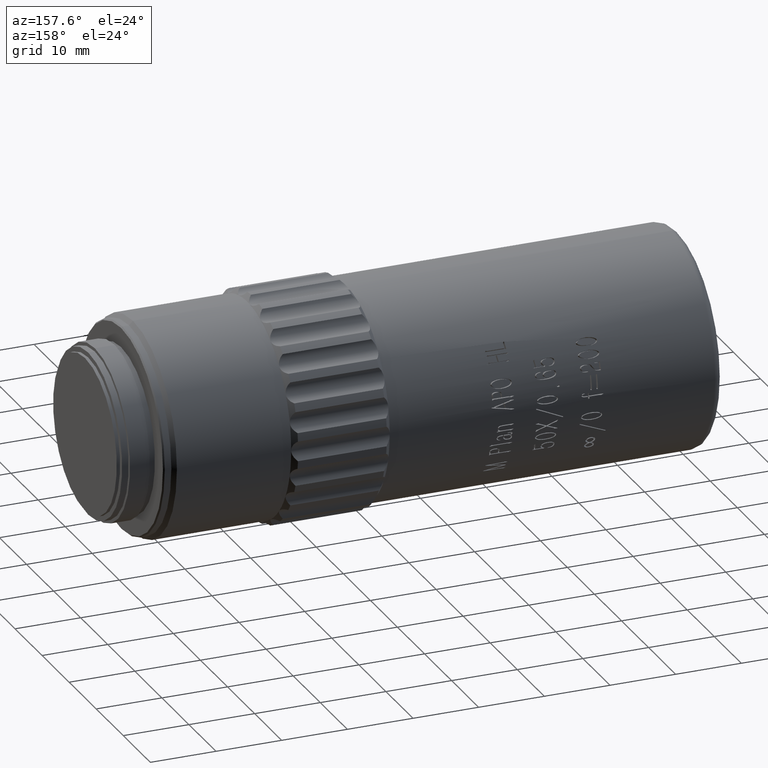
[diagram: clean part render]
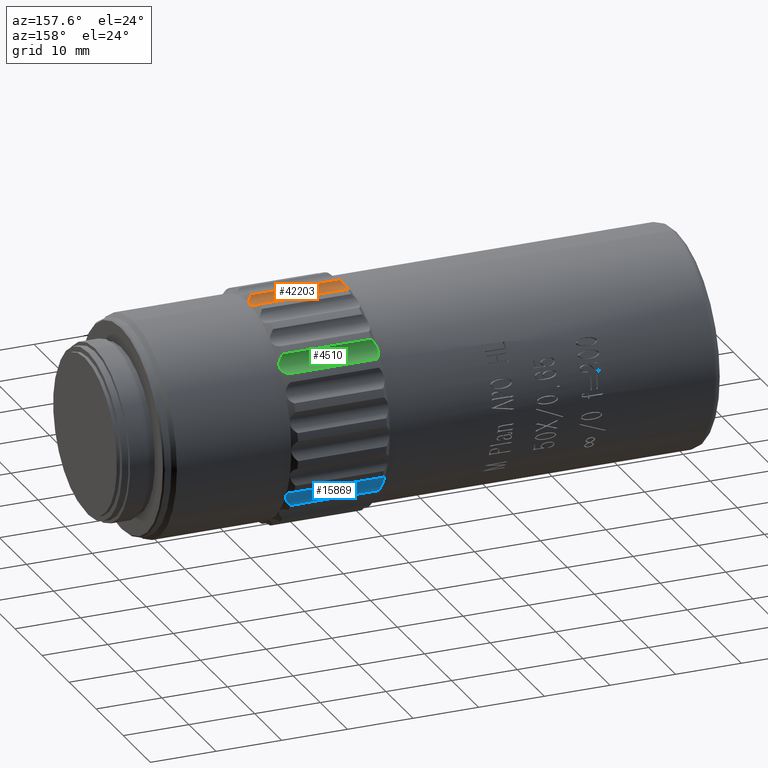
[diagram: same view with three faces highlighted in distinct colors, each labeled with its STEP entity id]
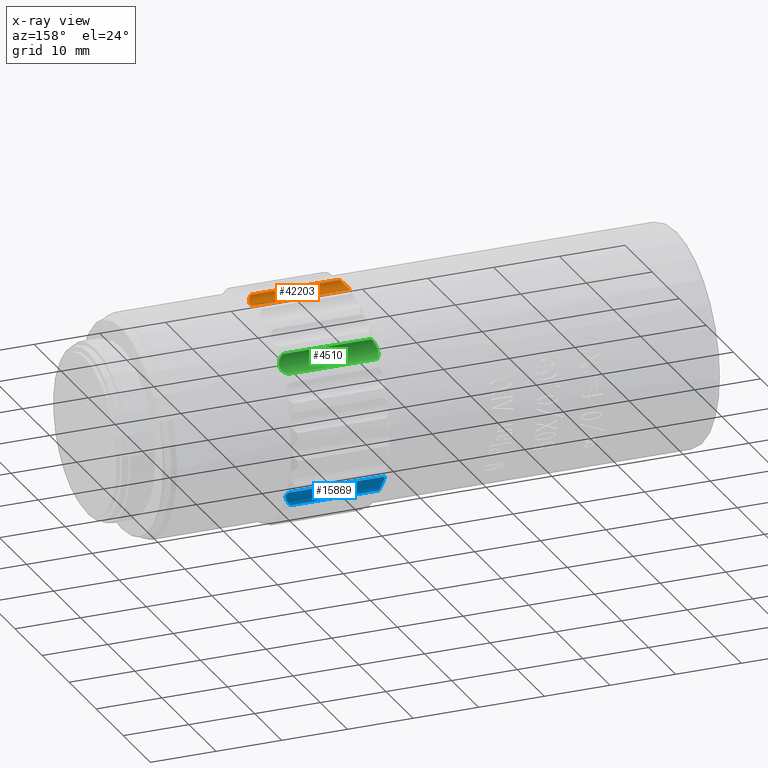
[diagram: x-ray of the same camera — body ghosted, the three highlighted faces saturated]
A machine part, auxiliary view with three faces highlighted in distinct colors.
The next image is the same camera in x-ray (body ghosted, the three faces saturated) — at least one of them is partly hidden behind the body in this view.
Their STEP definitions:

[orange] entity #42203 — the highlighted cylindrical surface (edge-blend (fillet) strip) has radius 2 mm, axis along (-1, -0, -0).
#36 = CARTESIAN_POINT ( 'NONE',  ( 66.36175387757199928, 0.6434555700397179834, 16.27580215441638245 ) ) ;
#61 = ORIENTED_EDGE ( 'NONE', *, *, #34920, .T. ) ;
#622 = EDGE_LOOP ( 'NONE', ( #35382, #61, #4533, #18204, #46809, #15512, #40055 ) ) ;
#1616 = CARTESIAN_POINT ( 'NONE',  ( 52.14999999999998437, 2.565628362228103310, 16.80528342834272948 ) ) ;
#2379 = CARTESIAN_POINT ( 'NONE',  ( 66.39999999999869829, 1.020345942352532287, 16.21793433696066700 ) ) ;
#2443 = CARTESIAN_POINT ( 'NONE',  ( 51.39999999999999147, 1.020345942352447244, 16.21793433695934539 ) ) ;
#3635 = B_SPLINE_CURVE_WITH_KNOTS ( 'NONE', 3,
 ( #31249, #23305, #9456, #40599 ),
 .UNSPECIFIED., .F., .F.,
 ( 4, 4 ),
 ( 0.003034290734495108215, 0.003772584295042918749 ),
 .UNSPECIFIED. ) ;
#3730 = CARTESIAN_POINT ( 'NONE',  ( 66.07517398992278856, -3.686632451628707533E-15, 16.57482601007723844 ) ) ;
#4156 = VERTEX_POINT ( 'NONE', #52501 ) ;
#4533 = ORIENTED_EDGE ( 'NONE', *, *, #34669, .F. ) ;
#4656 = DIRECTION ( 'NONE',  ( -1.000000000000000000, -0.000000000000000000, -0.000000000000000000 ) ) ;
#8544 = CARTESIAN_POINT ( 'NONE',  ( 66.17026312303693203, 0.1360178053035341061, 16.47973687696309142 ) ) ;
#8642 = VERTEX_POINT ( 'NONE', #36420 ) ;
#9009 = CARTESIAN_POINT ( 'NONE',  ( 51.42166185667392853, 0.7055714382331392809, 16.25703325327271287 ) ) ;
#9456 = CARTESIAN_POINT ( 'NONE',  ( 65.80657154407992948, -0.3209692212565879998, 16.84075692340308805 ) ) ;
#10571 = DIRECTION ( 'NONE',  ( -1.000000000000000000, -0.000000000000000000, -0.000000000000000000 ) ) ;
#11216 = CARTESIAN_POINT ( 'NONE',  ( 51.69838355598309931, 2.045280923602134315, 16.42197205866629162 ) ) ;
#12920 = B_SPLINE_CURVE_WITH_KNOTS ( 'NONE', 3,
 ( #47629, #25229, #55553, #36, #47341, #25792, #8544, #3730 ),
 .UNSPECIFIED., .F., .F.,
 ( 4, 2, 2, 4 ),
 ( 0.001887648531581082988, 0.002174309082309589837, 0.002460969633038097119, 0.003034290734495108215 ),
 .UNSPECIFIED. ) ;
#13260 = CARTESIAN_POINT ( 'NONE',  ( 51.69838355598309931, 0.02906558699381834796, 16.54882157568084011 ) ) ;
#13765 = B_SPLINE_CURVE_WITH_KNOTS ( 'NONE', 3,
 ( #49122, #41184, #49955, #27850, #27574, #19656, #27026, #35827, #19096, #2379 ),
 .UNSPECIFIED., .F., .F.,
 ( 4, 2, 2, 2, 4 ),
 ( 3.147481219699041249E-07, 0.0004721481939867481939, 0.0009439816398515264587, 0.001415815085716304669, 0.001887648531581082988 ),
 .UNSPECIFIED. ) ;
#13809 = CARTESIAN_POINT ( 'NONE',  ( 51.50172192507052671, 0.4119636132843811915, 16.34720396797844089 ) ) ;
#15512 = ORIENTED_EDGE ( 'NONE', *, *, #37044, .F. ) ;
#16038 = CARTESIAN_POINT ( 'NONE',  ( 51.55959058457574429, 1.783109788080267988, 16.31289442965853453 ) ) ;
#16888 = DIRECTION ( 'NONE',  ( 1.000000000000000000, 0.000000000000000000, 0.000000000000000000 ) ) ;
#17220 = CARTESIAN_POINT ( 'NONE',  ( 52.14999999999998437, -0.4391371032347625714, 16.99432724777779313 ) ) ;
#18060 = CARTESIAN_POINT ( 'NONE',  ( 52.05006487059916509, -0.3637139307425609758, 16.89630771090281769 ) ) ;
#18204 = ORIENTED_EDGE ( 'NONE', *, *, #40932, .T. ) ;
#18454 = AXIS2_PLACEMENT_3D ( 'NONE', #43452, #4656, #21921 ) ;
#19096 = CARTESIAN_POINT ( 'NONE',  ( 66.39999999999869829, 1.178626806821117645, 16.20797614903999317 ) ) ;
#19656 = CARTESIAN_POINT ( 'NONE',  ( 66.24040941542430971, 1.783109788080166069, 16.31289442965849545 ) ) ;
#19997 = CARTESIAN_POINT ( 'NONE',  ( 51.95560827549621052, 2.381949117657655268, 16.63623058486363959 ) ) ;
#20564 = CARTESIAN_POINT ( 'NONE',  ( 51.39999999999999147, 1.020345942352447244, 16.21793433695934539 ) ) ;
#21166 = VERTEX_POINT ( 'NONE', #1616 ) ;
#21921 = DIRECTION ( 'NONE',  ( 0.000000000000000000, 0.000000000000000000, 1.000000000000000000 ) ) ;
#23305 = CARTESIAN_POINT ( 'NONE',  ( 65.95272307284012925, -0.1751567655895614473, 16.69727692715989775 ) ) ;
#24787 = CARTESIAN_POINT ( 'NONE',  ( 51.50172192507052671, 1.640132775898111905, 16.26993411378131782 ) ) ;
#24808 = VECTOR ( 'NONE', #10571, 1000.000000000000000 ) ;
#25229 = CARTESIAN_POINT ( 'NONE',  ( 66.39999999999868407, 0.9241830268661388459, 16.22398439479063725 ) ) ;
#25632 = VERTEX_POINT ( 'NONE', #40279 ) ;
#25792 = CARTESIAN_POINT ( 'NONE',  ( 66.25270941888545906, 0.2932177985784649721, 16.39559473891785046 ) ) ;
#26151 = FACE_OUTER_BOUND ( 'NONE', #622, .T. ) ;
#26257 = CARTESIAN_POINT ( 'NONE',  ( 51.40000000000133440, 0.8620650778837554151, 16.22789252488136924 ) ) ;
#27026 = CARTESIAN_POINT ( 'NONE',  ( 66.29827807492954150, 1.640132775897984896, 16.26993411378127874 ) ) ;
#27466 = VERTEX_POINT ( 'NONE', #38967 ) ;
#27574 = CARTESIAN_POINT ( 'NONE',  ( 66.10161644401696890, 2.045280923602069922, 16.42197205866625609 ) ) ;
#27850 = CARTESIAN_POINT ( 'NONE',  ( 66.01975841758441277, 2.166192637224036766, 16.48884243087964308 ) ) ;
#29313 = CARTESIAN_POINT ( 'NONE',  ( 52.14999999999998437, 2.565628362228103310, 16.80528342834272948 ) ) ;
#30477 = CARTESIAN_POINT ( 'NONE',  ( 58.90000000000000568, -0.4391371032347625714, 16.99432724777779313 ) ) ;
#31219 = EDGE_CURVE ( 'NONE', #8642, #27466, #3635, .T. ) ;
#31249 = CARTESIAN_POINT ( 'NONE',  ( 66.07517398992278856, -3.686632451628707533E-15, 16.57482601007723844 ) ) ;
#31901 = CARTESIAN_POINT ( 'NONE',  ( 51.39999999999999147, 1.020345942352447244, 16.21793433695934539 ) ) ;
#34494 = CARTESIAN_POINT ( 'NONE',  ( 51.95560827549621052, -0.2780941638865808141, 16.80358632280248088 ) ) ;
#34669 = EDGE_CURVE ( 'NONE', #25632, #34825, #35397, .T. ) ;
#34825 = VERTEX_POINT ( 'NONE', #20564 ) ;
#34920 = EDGE_CURVE ( 'NONE', #21166, #34825, #54342, .T. ) ;
#35382 = ORIENTED_EDGE ( 'NONE', *, *, #38447, .T. ) ;
#35397 = B_SPLINE_CURVE_WITH_KNOTS ( 'NONE', 3,
 ( #17220, #18060, #34494, #51770, #13260, #47811, #13809, #9009, #26257, #31901 ),
 .UNSPECIFIED., .F., .F.,
 ( 4, 2, 2, 2, 4 ),
 ( 3.147481219673437561E-07, 0.0004721481939866973990, 0.0009439816398514274710, 0.001415815085716157435, 0.001887648531580887615 ),
 .UNSPECIFIED. ) ;
#35807 = CARTESIAN_POINT ( 'NONE',  ( 58.90000000000000568, 2.565628362228103754, 16.80528342834272948 ) ) ;
#35827 = CARTESIAN_POINT ( 'NONE',  ( 66.37833814332610416, 1.337538749098437174, 16.21727324019437333 ) ) ;
#36081 = VERTEX_POINT ( 'NONE', #42656 ) ;
#36420 = CARTESIAN_POINT ( 'NONE',  ( 66.07517398992278856, -3.686632451628707533E-15, 16.57482601007723844 ) ) ;
#37044 = EDGE_CURVE ( 'NONE', #36081, #8642, #12920, .T. ) ;
#38447 = EDGE_CURVE ( 'NONE', #4156, #21166, #44857, .T. ) ;
#38967 = CARTESIAN_POINT ( 'NONE',  ( 65.65000000000003411, -0.4391371032347625714, 16.99432724777779313 ) ) ;
#39203 = CYLINDRICAL_SURFACE ( 'NONE', #18454, 1.999999999999998224 ) ;
#40055 = ORIENTED_EDGE ( 'NONE', *, *, #50980, .F. ) ;
#40279 = CARTESIAN_POINT ( 'NONE',  ( 52.14999999999998437, -0.4391371032347625714, 16.99432724777779313 ) ) ;
#40599 = CARTESIAN_POINT ( 'NONE',  ( 65.65000000000003411, -0.4391371032347625714, 16.99432724777779313 ) ) ;
#40932 = EDGE_CURVE ( 'NONE', #25632, #27466, #55679, .T. ) ;
#41184 = CARTESIAN_POINT ( 'NONE',  ( 65.74993512940086759, 2.478514818469775616, 16.71748983488716789 ) ) ;
#42203 = ADVANCED_FACE ( 'NONE', ( #26151 ), #39203, .F. ) ;
#42656 = CARTESIAN_POINT ( 'NONE',  ( 66.39999999999869829, 1.020345942352532287, 16.21793433696066700 ) ) ;
#43452 = CARTESIAN_POINT ( 'NONE',  ( 91.10099999999999909, 1.145926981411293122, 18.21398779381720345 ) ) ;
#44857 = LINE ( 'NONE', #35807, #24808 ) ;
#46057 = CARTESIAN_POINT ( 'NONE',  ( 51.42166185667392853, 1.337538749098604152, 16.21727324019439109 ) ) ;
#46809 = ORIENTED_EDGE ( 'NONE', *, *, #31219, .F. ) ;
#47341 = CARTESIAN_POINT ( 'NONE',  ( 66.33889266089306602, 0.5520387928167780345, 16.30199580047719010 ) ) ;
#47629 = CARTESIAN_POINT ( 'NONE',  ( 66.39999999999869829, 1.020345942352532287, 16.21793433696066700 ) ) ;
#47811 = CARTESIAN_POINT ( 'NONE',  ( 51.55959058457574429, 0.2754983728522842346, 16.40774530019550426 ) ) ;
#49122 = CARTESIAN_POINT ( 'NONE',  ( 65.65000000000003411, 2.565628362228103754, 16.80528342834272948 ) ) ;
#49955 = CARTESIAN_POINT ( 'NONE',  ( 65.84439172450383637, 2.381949117657629955, 16.63623058486362538 ) ) ;
#50126 = VECTOR ( 'NONE', #16888, 1000.000000000000000 ) ;
#50583 = CARTESIAN_POINT ( 'NONE',  ( 51.78024158241561281, 2.166192637224089612, 16.48884243087967150 ) ) ;
#50980 = EDGE_CURVE ( 'NONE', #4156, #36081, #13765, .T. ) ;
#51141 = CARTESIAN_POINT ( 'NONE',  ( 52.05006487059916509, 2.478514818469785830, 16.71748983488717499 ) ) ;
#51770 = CARTESIAN_POINT ( 'NONE',  ( 51.78024158241561281, -0.08251162167247876045, 16.63031891108016325 ) ) ;
#52501 = CARTESIAN_POINT ( 'NONE',  ( 65.65000000000003411, 2.565628362228103754, 16.80528342834272948 ) ) ;
#54342 = B_SPLINE_CURVE_WITH_KNOTS ( 'NONE', 3,
 ( #29313, #51141, #19997, #50583, #11216, #16038, #24787, #46057, #54836, #2443 ),
 .UNSPECIFIED., .F., .F.,
 ( 4, 2, 2, 2, 4 ),
 ( 3.147481221785589389E-07, 0.0004721481939869082221, 0.0009439816398516378063, 0.001415815085716367336, 0.001887648531581097083 ),
 .UNSPECIFIED. ) ;
#54836 = CARTESIAN_POINT ( 'NONE',  ( 51.40000000000133440, 1.178626806821305939, 16.20797614904000028 ) ) ;
#55553 = CARTESIAN_POINT ( 'NONE',  ( 66.39221673998292772, 0.8295979994814043357, 16.23687447708078224 ) ) ;
#55679 = LINE ( 'NONE', #30477, #50126 ) ;

[blue] entity #15869 — the highlighted cylindrical surface (edge-blend (fillet) strip) has radius 2 mm, axis along (-1, -0, -0).
#490 = CARTESIAN_POINT ( 'NONE',  ( 51.39999999999999147, 14.23998355071271504, -7.828497204153003430 ) ) ;
#640 = CARTESIAN_POINT ( 'NONE',  ( 66.03236023278984135, 15.07756417861817688, -6.991031086037403419 ) ) ;
#1723 = EDGE_CURVE ( 'NONE', #44647, #45318, #55565, .T. ) ;
#3531 = CARTESIAN_POINT ( 'NONE',  ( 51.42166185667198164, 14.40938577328024195, -7.560328226286952003 ) ) ;
#4628 = CARTESIAN_POINT ( 'NONE',  ( 66.40000000000065938, 14.31628962609802258, -7.689696968299276847 ) ) ;
#4724 = DIRECTION ( 'NONE',  ( 1.000000000000000000, 0.000000000000000000, 0.000000000000000000 ) ) ;
#4854 = CARTESIAN_POINT ( 'NONE',  ( 65.74993512940106655, 14.07113676838946503, -9.360588236334326240 ) ) ;
#5407 = CARTESIAN_POINT ( 'NONE',  ( 66.01975841758527963, 13.99723072883769781, -8.980637347961078376 ) ) ;
#8307 = CARTESIAN_POINT ( 'NONE',  ( 65.65000000000003411, 15.56390251696602434, -6.838489485433075110 ) ) ;
#8343 = CARTESIAN_POINT ( 'NONE',  ( 51.39999999999933777, 14.31638670287811443, -7.689520386291807341 ) ) ;
#9095 = CARTESIAN_POINT ( 'NONE',  ( 66.37833814332799420, 14.10433124392771376, -8.115220355231711480 ) ) ;
#10673 = CARTESIAN_POINT ( 'NONE',  ( 51.95560798183112894, 14.03872678750201430, -9.238614072774035790 ) ) ;
#10954 = CARTESIAN_POINT ( 'NONE',  ( 51.50172195764222494, 14.02314191240814090, -8.411437666765548826 ) ) ;
#12838 = CARTESIAN_POINT ( 'NONE',  ( 65.84987124278747217, 15.32229262032492301, -6.891510222226242099 ) ) ;
#12872 = CARTESIAN_POINT ( 'NONE',  ( 51.55959058457420241, 14.72887031556821746, -7.235356550762016781 ) ) ;
#13560 = CARTESIAN_POINT ( 'NONE',  ( 91.10099999999999909, 15.99259691079987000, -8.792004552356143421 ) ) ;
#14819 = CARTESIAN_POINT ( 'NONE',  ( 66.40000000000067359, 14.23998355071214839, -7.828497204152697009 ) ) ;
#15209 = CARTESIAN_POINT ( 'NONE',  ( 51.69838347394962597, 13.98820630011183574, -8.842761003612666926 ) ) ;
#15483 = CARTESIAN_POINT ( 'NONE',  ( 52.14999999999998437, 14.11348364383431964, -9.476791621388597875 ) ) ;
#15869 = ADVANCED_FACE ( 'NONE', ( #39056 ), #39341, .F. ) ;
#16837 = CARTESIAN_POINT ( 'NONE',  ( 51.39999999999999147, 14.23998355071271504, -7.828497204153003430 ) ) ;
#17242 = DIRECTION ( 'NONE',  ( -1.000000000000000000, -0.000000000000000000, -0.000000000000000000 ) ) ;
#17554 = ORIENTED_EDGE ( 'NONE', *, *, #44022, .T. ) ;
#18412 = CARTESIAN_POINT ( 'NONE',  ( 52.14999999999998437, 14.11348364383431964, -9.476791621388597875 ) ) ;
#18698 = CARTESIAN_POINT ( 'NONE',  ( 65.65000000000003411, 14.11348364383431964, -9.476791621388597875 ) ) ;
#20017 = CARTESIAN_POINT ( 'NONE',  ( 51.55959043454780044, 14.00113699395059896, -8.559098268324962788 ) ) ;
#20203 = B_SPLINE_CURVE_WITH_KNOTS ( 'NONE', 3,
 ( #52201, #4628, #30384, #22440, #26121, #640, #12838, #8307 ),
 .UNSPECIFIED., .F., .F.,
 ( 4, 2, 2, 4 ),
 ( 0.001887648531584164725, 0.002358882472450390087, 0.002830116413316615884, 0.003772584295049067043 ),
 .UNSPECIFIED. ) ;
#20230 = VECTOR ( 'NONE', #4724, 1000.000000000000000 ) ;
#20807 = CARTESIAN_POINT ( 'NONE',  ( 51.95560827549573446, 15.32274621940833903, -6.902991957655329358 ) ) ;
#21082 = CARTESIAN_POINT ( 'NONE',  ( 51.69838355598194823, 14.96144592307018328, -7.072444856135377655 ) ) ;
#22102 = CARTESIAN_POINT ( 'NONE',  ( 65.65000000000003411, 15.56390251696602434, -6.838489485433075110 ) ) ;
#22440 = CARTESIAN_POINT ( 'NONE',  ( 66.29856986107797923, 14.61535765218591010, -7.333658894872111311 ) ) ;
#24807 = CARTESIAN_POINT ( 'NONE',  ( 52.05006465331422305, 14.07113667631644915, -9.360587983678241741 ) ) ;
#25008 = VERTEX_POINT ( 'NONE', #22102 ) ;
#25039 = CARTESIAN_POINT ( 'NONE',  ( 52.14999999999998437, 15.56390251696602434, -6.838489485433075110 ) ) ;
#26121 = CARTESIAN_POINT ( 'NONE',  ( 66.24066348792142378, 14.72841173437966589, -7.235716204537385288 ) ) ;
#26406 = EDGE_CURVE ( 'NONE', #45318, #25008, #20203, .T. ) ;
#27139 = VERTEX_POINT ( 'NONE', #18412 ) ;
#27449 = CARTESIAN_POINT ( 'NONE',  ( 66.29827807493117575, 14.02314195659312368, -8.411437526044082347 ) ) ;
#28196 = VERTEX_POINT ( 'NONE', #53787 ) ;
#28812 = B_SPLINE_CURVE_WITH_KNOTS ( 'NONE', 3,
 ( #15483, #24807, #10673, #32753, #15209, #20017, #10954, #37017, #41821, #45510 ),
 .UNSPECIFIED., .F., .F.,
 ( 4, 2, 2, 2, 4 ),
 ( 2.707012929640593206E-07, 0.0004721041770256527003, 0.0009439376527583413562, 0.001415771128491030229, 0.001887604604223718776 ),
 .UNSPECIFIED. ) ;
#30341 = ORIENTED_EDGE ( 'NONE', *, *, #40878, .T. ) ;
#30384 = CARTESIAN_POINT ( 'NONE',  ( 66.37845809732272073, 14.40895176236726449, -7.560896077843875851 ) ) ;
#30900 = EDGE_CURVE ( 'NONE', #28196, #38103, #50282, .T. ) ;
#32753 = CARTESIAN_POINT ( 'NONE',  ( 51.78024137559386020, 13.99723069929451569, -8.980637010927448927 ) ) ;
#34890 = ORIENTED_EDGE ( 'NONE', *, *, #1723, .F. ) ;
#35944 = DIRECTION ( 'NONE',  ( -1.000000000000000000, -0.000000000000000000, -0.000000000000000000 ) ) ;
#36597 = VECTOR ( 'NONE', #35944, 1000.000000000000000 ) ;
#37017 = CARTESIAN_POINT ( 'NONE',  ( 51.42166178733222637, 14.10433132539767165, -8.115220078476925281 ) ) ;
#37131 = AXIS2_PLACEMENT_3D ( 'NONE', #13560, #17242, #52915 ) ;
#38103 = VERTEX_POINT ( 'NONE', #490 ) ;
#38455 = ORIENTED_EDGE ( 'NONE', *, *, #30900, .F. ) ;
#38832 = EDGE_CURVE ( 'NONE', #44647, #27139, #52392, .T. ) ;
#39056 = FACE_OUTER_BOUND ( 'NONE', #45989, .T. ) ;
#39341 = CYLINDRICAL_SURFACE ( 'NONE', #37131, 2.000000000000000888 ) ;
#39954 = CARTESIAN_POINT ( 'NONE',  ( 66.24040941542578764, 14.00113696162435240, -8.559098607407136683 ) ) ;
#40609 = ORIENTED_EDGE ( 'NONE', *, *, #26406, .F. ) ;
#40878 = EDGE_CURVE ( 'NONE', #27139, #38103, #28812, .T. ) ;
#41821 = CARTESIAN_POINT ( 'NONE',  ( 51.39999999999933777, 14.16358028349729459, -7.967474231286716169 ) ) ;
#42333 = CARTESIAN_POINT ( 'NONE',  ( 52.05006487059893772, 15.44309816337983676, -6.864999723316569380 ) ) ;
#43922 = CARTESIAN_POINT ( 'NONE',  ( 66.40000000000067359, 14.23998355071214839, -7.828497204152697009 ) ) ;
#44022 = EDGE_CURVE ( 'NONE', #28196, #25008, #47770, .T. ) ;
#44475 = CARTESIAN_POINT ( 'NONE',  ( 66.40000000000067359, 14.16358039854613793, -7.967474022013662172 ) ) ;
#44647 = VERTEX_POINT ( 'NONE', #55633 ) ;
#45318 = VERTEX_POINT ( 'NONE', #14819 ) ;
#45510 = CARTESIAN_POINT ( 'NONE',  ( 51.39999999999999147, 14.23998355071271504, -7.828497204153003430 ) ) ;
#45989 = EDGE_LOOP ( 'NONE', ( #47293, #30341, #38455, #17554, #40609, #34890 ) ) ;
#47293 = ORIENTED_EDGE ( 'NONE', *, *, #38832, .T. ) ;
#47770 = LINE ( 'NONE', #48044, #20230 ) ;
#47985 = CARTESIAN_POINT ( 'NONE',  ( 51.50172192506880720, 14.61598680699120756, -7.333056746484592381 ) ) ;
#48044 = CARTESIAN_POINT ( 'NONE',  ( 58.90000000000000568, 15.56390251696602434, -6.838489485433075110 ) ) ;
#48719 = CARTESIAN_POINT ( 'NONE',  ( 65.84439172450426270, 14.03872687638615524, -9.238614471990912236 ) ) ;
#50282 = B_SPLINE_CURVE_WITH_KNOTS ( 'NONE', 3,
 ( #25039, #42333, #20807, #51387, #21082, #12872, #47985, #3531, #8343, #16837 ),
 .UNSPECIFIED., .F., .F.,
 ( 4, 2, 2, 2, 4 ),
 ( 3.147481219569901018E-07, 0.0004721481939875326684, 0.0009439816398531084181, 0.001415815085718684059, 0.001887648531584259701 ),
 .UNSPECIFIED. ) ;
#51387 = CARTESIAN_POINT ( 'NONE',  ( 51.78024158241469621, 15.08269418170437248, -7.006186657026218789 ) ) ;
#52149 = CARTESIAN_POINT ( 'NONE',  ( 66.10161644401804892, 13.98820631081829013, -8.842761138808004517 ) ) ;
#52201 = CARTESIAN_POINT ( 'NONE',  ( 66.40000000000067359, 14.23998355071214839, -7.828497204152697009 ) ) ;
#52392 = LINE ( 'NONE', #53216, #36597 ) ;
#52915 = DIRECTION ( 'NONE',  ( 0.000000000000000000, 0.000000000000000000, 1.000000000000000000 ) ) ;
#53216 = CARTESIAN_POINT ( 'NONE',  ( 58.90000000000000568, 14.11348364383431964, -9.476791621388597875 ) ) ;
#53787 = CARTESIAN_POINT ( 'NONE',  ( 52.14999999999998437, 15.56390251696602434, -6.838489485433075110 ) ) ;
#55565 = B_SPLINE_CURVE_WITH_KNOTS ( 'NONE', 3,
 ( #18698, #4854, #48719, #5407, #52149, #39954, #27449, #9095, #44475, #43922 ),
 .UNSPECIFIED., .F., .F.,
 ( 4, 2, 2, 2, 4 ),
 ( 3.147481219695170838E-07, 0.0004721481939875183027, 0.0009439816398530671100, 0.001415815085718615971, 0.001887648531584164725 ),
 .UNSPECIFIED. ) ;
#55633 = CARTESIAN_POINT ( 'NONE',  ( 65.65000000000003411, 14.11348364383431964, -9.476791621388597875 ) ) ;

[green] entity #4510 — the highlighted cylindrical surface (edge-blend (fillet) strip) has radius 2 mm, axis along (-1, -0, -0).
#86 = VERTEX_POINT ( 'NONE', #45270 ) ;
#145 = CARTESIAN_POINT ( 'NONE',  ( 52.14999999999998437, 11.31330036327561750, 12.68894144088890918 ) ) ;
#392 = B_SPLINE_CURVE_WITH_KNOTS ( 'NONE', 3,
 ( #28177, #23385, #40681, #36434, #15181, #49451, #10643, #2152 ),
 .UNSPECIFIED., .F., .F.,
 ( 4, 2, 2, 4 ),
 ( 0.001887648531581739798, 0.002358882472447366898, 0.002830116413312993781, 0.003772584295044231501 ),
 .UNSPECIFIED. ) ;
#1937 = CARTESIAN_POINT ( 'NONE',  ( 51.95560787375941203, 13.12464912233871672, 10.49673385307328566 ) ) ;
#2152 = CARTESIAN_POINT ( 'NONE',  ( 65.65000000000003411, 11.31330036327561750, 12.68894144088890918 ) ) ;
#2721 = CARTESIAN_POINT ( 'NONE',  ( 58.90000000000000568, 11.31330036327561750, 12.68894144088890918 ) ) ;
#4510 = ADVANCED_FACE ( 'NONE', ( #48604 ), #44632, .F. ) ;
#5629 = VERTEX_POINT ( 'NONE', #8270 ) ;
#6195 = CARTESIAN_POINT ( 'NONE',  ( 52.14999999999998437, 13.37427072086993363, 10.49423092393536194 ) ) ;
#6388 = CARTESIAN_POINT ( 'NONE',  ( 91.10099999999999909, 13.30367745044167194, 12.49298468319893018 ) ) ;
#7005 = CARTESIAN_POINT ( 'NONE',  ( 66.10161644401718206, 12.73255907397068221, 10.57101129409599061 ) ) ;
#7557 = CARTESIAN_POINT ( 'NONE',  ( 66.29827807492986835, 12.33314164967400650, 10.73752339408039447 ) ) ;
#8064 = LINE ( 'NONE', #37535, #28560 ) ;
#8185 = EDGE_LOOP ( 'NONE', ( #40655, #54882, #52248, #30946, #39227, #15455 ) ) ;
#8270 = CARTESIAN_POINT ( 'NONE',  ( 52.14999999999998437, 13.37427072086993363, 10.49423092393536194 ) ) ;
#10643 = CARTESIAN_POINT ( 'NONE',  ( 65.84987124278713111, 11.28906451643051234, 12.44277246556384497 ) ) ;
#10785 = CARTESIAN_POINT ( 'NONE',  ( 52.14999999999998437, 11.31330036327561750, 12.68894144088890918 ) ) ;
#10985 = EDGE_CURVE ( 'NONE', #25289, #86, #28877, .T. ) ;
#11271 = CARTESIAN_POINT ( 'NONE',  ( 51.40000000000090807, 11.95430535503662917, 11.00828031891271408 ) ) ;
#11811 = CARTESIAN_POINT ( 'NONE',  ( 65.74993512940088181, 13.25066883012749130, 10.48986547288458837 ) ) ;
#12087 = EDGE_CURVE ( 'NONE', #25289, #5629, #8064, .T. ) ;
#13792 = VERTEX_POINT ( 'NONE', #44202 ) ;
#14968 = CARTESIAN_POINT ( 'NONE',  ( 51.55959037933445899, 12.46677533839517871, 10.67096580207945067 ) ) ;
#15181 = CARTESIAN_POINT ( 'NONE',  ( 66.24066348792024428, 11.43290457246404124, 11.77159268098358069 ) ) ;
#15455 = ORIENTED_EDGE ( 'NONE', *, *, #10985, .F. ) ;
#16971 = AXIS2_PLACEMENT_3D ( 'NONE', #6388, #40109, #18580 ) ;
#18355 = VERTEX_POINT ( 'NONE', #10785 ) ;
#18580 = DIRECTION ( 'NONE',  ( 0.000000000000000000, 0.000000000000000000, 1.000000000000000000 ) ) ;
#19212 = CARTESIAN_POINT ( 'NONE',  ( 51.78024129947376508, 12.86647538865849505, 10.53698803795302830 ) ) ;
#19711 = LINE ( 'NONE', #2721, #36566 ) ;
#21242 = EDGE_CURVE ( 'NONE', #86, #13792, #392, .T. ) ;
#21386 = CARTESIAN_POINT ( 'NONE',  ( 52.05006487059911535, 11.30118249951076947, 12.56585755918314362 ) ) ;
#23385 = CARTESIAN_POINT ( 'NONE',  ( 66.39999999999912461, 11.73731320089554764, 11.23935349327205024 ) ) ;
#23449 = CARTESIAN_POINT ( 'NONE',  ( 52.05006457335250047, 13.25066846248656383, 10.48986545990000607 ) ) ;
#24282 = CARTESIAN_POINT ( 'NONE',  ( 51.39999999999999147, 11.84574019559815561, 11.12389047134095676 ) ) ;
#25289 = VERTEX_POINT ( 'NONE', #32815 ) ;
#28177 = CARTESIAN_POINT ( 'NONE',  ( 66.39999999999911040, 11.84574019559882174, 11.12389047134158027 ) ) ;
#28240 = CARTESIAN_POINT ( 'NONE',  ( 51.42166176181513748, 12.07651092304640628, 10.90627535765395528 ) ) ;
#28501 = CARTESIAN_POINT ( 'NONE',  ( 66.01975841758459751, 12.86647583965995523, 10.53698793391076727 ) ) ;
#28560 = VECTOR ( 'NONE', #50555, 1000.000000000000000 ) ;
#28742 = DIRECTION ( 'NONE',  ( 1.000000000000000000, 0.000000000000000000, 0.000000000000000000 ) ) ;
#28877 = B_SPLINE_CURVE_WITH_KNOTS ( 'NONE', 3,
 ( #54860, #11811, #46360, #28501, #7005, #41549, #7557, #37303, #46085, #54577 ),
 .UNSPECIFIED., .F., .F.,
 ( 4, 2, 2, 2, 4 ),
 ( 3.147481219706410436E-07, 0.0004721481939869129384, 0.0009439816398518552972, 0.001415815085716797548, 0.001887648531581739798 ),
 .UNSPECIFIED. ) ;
#29632 = VERTEX_POINT ( 'NONE', #52081 ) ;
#30716 = CARTESIAN_POINT ( 'NONE',  ( 51.55959058457540323, 11.43270423077788500, 11.77213995674001268 ) ) ;
#30946 = ORIENTED_EDGE ( 'NONE', *, *, #49244, .T. ) ;
#30991 = CARTESIAN_POINT ( 'NONE',  ( 51.95560827549609684, 11.30012446555411287, 12.43965581255545239 ) ) ;
#32235 = CARTESIAN_POINT ( 'NONE',  ( 51.50172196963060145, 12.33314181408131738, 10.73752327710498022 ) ) ;
#32815 = CARTESIAN_POINT ( 'NONE',  ( 65.65000000000003411, 13.37427072086993363, 10.49423092393536194 ) ) ;
#34419 = CARTESIAN_POINT ( 'NONE',  ( 51.78024158241542096, 11.32408829765321556, 12.17946384201245280 ) ) ;
#36434 = CARTESIAN_POINT ( 'NONE',  ( 66.29856986107670025, 11.49111797364900767, 11.63380590363142630 ) ) ;
#36566 = VECTOR ( 'NONE', #28742, 1000.000000000000000 ) ;
#37303 = CARTESIAN_POINT ( 'NONE',  ( 66.37833814332650206, 12.07651124868231740, 10.90627513465988763 ) ) ;
#37535 = CARTESIAN_POINT ( 'NONE',  ( 58.90000000000000568, 13.37427072086993363, 10.49423092393536194 ) ) ;
#39097 = EDGE_CURVE ( 'NONE', #18355, #29632, #45900, .T. ) ;
#39227 = ORIENTED_EDGE ( 'NONE', *, *, #21242, .F. ) ;
#39238 = CARTESIAN_POINT ( 'NONE',  ( 51.69838355598286483, 11.34963581721768655, 12.04367498600773700 ) ) ;
#40109 = DIRECTION ( 'NONE',  ( -1.000000000000000000, -0.000000000000000000, -0.000000000000000000 ) ) ;
#40655 = ORIENTED_EDGE ( 'NONE', *, *, #12087, .T. ) ;
#40681 = CARTESIAN_POINT ( 'NONE',  ( 66.37845809732124280, 11.64345044956571584, 11.36728208582587563 ) ) ;
#41549 = CARTESIAN_POINT ( 'NONE',  ( 66.24040941542462235, 12.46677576590084691, 10.67096561667535326 ) ) ;
#43678 = B_SPLINE_CURVE_WITH_KNOTS ( 'NONE', 3,
 ( #6195, #23449, #1937, #19212, #53767, #14968, #32235, #28240, #11271, #24282 ),
 .UNSPECIFIED., .F., .F.,
 ( 4, 2, 2, 2, 4 ),
 ( 2.544929493005604313E-07, 0.0004720879796676607371, 0.0009439214663860208583, 0.001415754953104381196, 0.001887588439822741318 ),
 .UNSPECIFIED. ) ;
#44202 = CARTESIAN_POINT ( 'NONE',  ( 65.65000000000003411, 11.31330036327561750, 12.68894144088890918 ) ) ;
#44632 = CYLINDRICAL_SURFACE ( 'NONE', #16971, 2.000000000000000000 ) ;
#45270 = CARTESIAN_POINT ( 'NONE',  ( 66.39999999999911040, 11.84574019559882174, 11.12389047134158027 ) ) ;
#45900 = B_SPLINE_CURVE_WITH_KNOTS ( 'NONE', 3,
 ( #145, #21386, #30991, #34419, #39238, #30716, #48282, #48007, #47735, #47167 ),
 .UNSPECIFIED., .F., .F.,
 ( 4, 2, 2, 2, 4 ),
 ( 3.147481219566283128E-07, 0.0004721481939868656130, 0.0009439816398517745242, 0.001415815085716683706, 0.001887648531581592563 ),
 .UNSPECIFIED. ) ;
#46085 = CARTESIAN_POINT ( 'NONE',  ( 66.39999999999912461, 11.95430513139621276, 11.00828055706554665 ) ) ;
#46360 = CARTESIAN_POINT ( 'NONE',  ( 65.84439172450393585, 13.12464967931688697, 10.49673379995252276 ) ) ;
#47167 = CARTESIAN_POINT ( 'NONE',  ( 51.39999999999999147, 11.84574019559815561, 11.12389047134095676 ) ) ;
#47735 = CARTESIAN_POINT ( 'NONE',  ( 51.40000000000090807, 11.73717525980135079, 11.23950038561771692 ) ) ;
#48007 = CARTESIAN_POINT ( 'NONE',  ( 51.42166185667351641, 11.64304450738995911, 11.36787033051434825 ) ) ;
#48282 = CARTESIAN_POINT ( 'NONE',  ( 51.50172192507017144, 11.49073971602815547, 11.63459033949376575 ) ) ;
#48337 = EDGE_CURVE ( 'NONE', #5629, #29632, #43678, .T. ) ;
#48604 = FACE_OUTER_BOUND ( 'NONE', #8185, .T. ) ;
#49244 = EDGE_CURVE ( 'NONE', #18355, #13792, #19711, .T. ) ;
#49451 = CARTESIAN_POINT ( 'NONE',  ( 66.03236023278915923, 11.30808923497133200, 12.17926824814368736 ) ) ;
#50555 = DIRECTION ( 'NONE',  ( -1.000000000000000000, -0.000000000000000000, -0.000000000000000000 ) ) ;
#52081 = CARTESIAN_POINT ( 'NONE',  ( 51.39999999999999147, 11.84574019559815561, 11.12389047134095676 ) ) ;
#52248 = ORIENTED_EDGE ( 'NONE', *, *, #39097, .F. ) ;
#53767 = CARTESIAN_POINT ( 'NONE',  ( 51.69838344376122308, 12.73255889354751424, 10.57101133731847931 ) ) ;
#54577 = CARTESIAN_POINT ( 'NONE',  ( 66.39999999999911040, 11.84574019559882174, 11.12389047134158027 ) ) ;
#54860 = CARTESIAN_POINT ( 'NONE',  ( 65.65000000000003411, 13.37427072086993363, 10.49423092393536194 ) ) ;
#54882 = ORIENTED_EDGE ( 'NONE', *, *, #48337, .T. ) ;